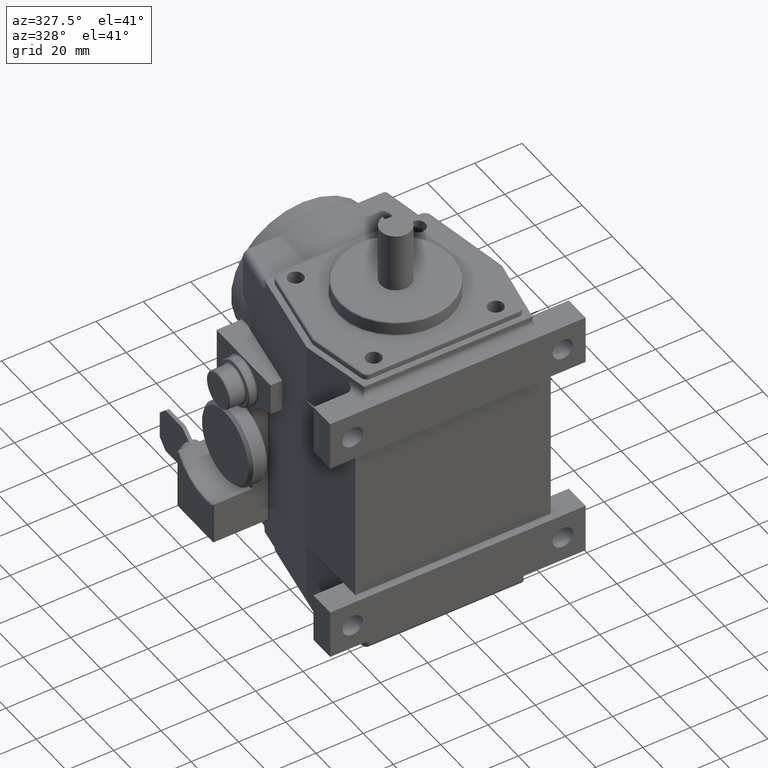
[diagram: clean part render]
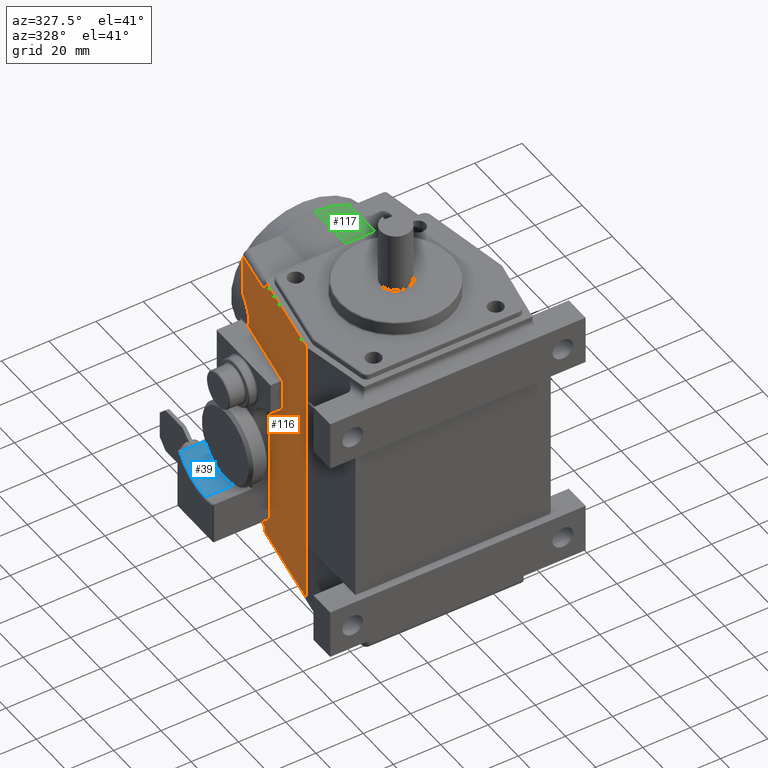
[diagram: same view with three faces highlighted in distinct colors, each labeled with its STEP entity id]
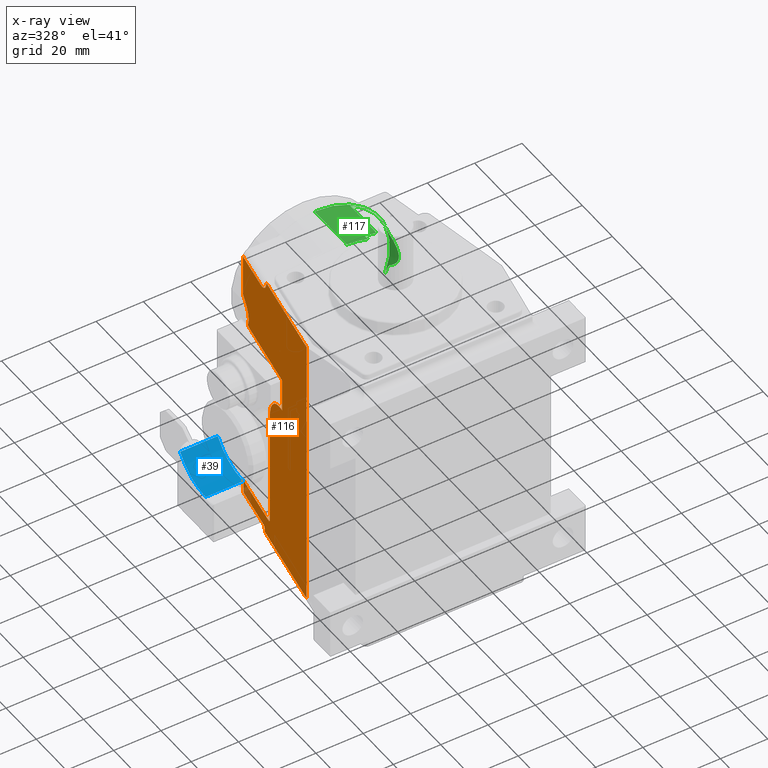
[diagram: x-ray of the same camera — body ghosted, the three highlighted faces saturated]
A machine part, auxiliary view with three faces highlighted in distinct colors.
The next image is the same camera in x-ray (body ghosted, the three faces saturated) — at least one of them is partly hidden behind the body in this view.
Their STEP definitions:

[orange] entity #116 — the highlighted planar face has unit normal (-0.9844, 0.1757, 0).
#116 = ADVANCED_FACE ( 'NONE', ( #3120 ), #3593, .T. ) ;
#349 = EDGE_LOOP ( 'NONE', ( #1323, #1324, #1325, #1326, #1327, #1328, #1329, #1330, #1331, #1332, #1333, #1334, #1335, #1336, #1337, #1338, #1339, #1340, #1341, #1342 ) ) ;
#756 = EDGE_CURVE ( 'NONE', #10120, #10119, #4960, .T. ) ;
#779 = EDGE_CURVE ( 'NONE', #10119, #10135, #5007, .T. ) ;
#786 = EDGE_CURVE ( 'NONE', #10137, #10120, #5020, .T. ) ;
#812 = EDGE_CURVE ( 'NONE', #7578, #7579, #5478, .T. ) ;
#816 = EDGE_CURVE ( 'NONE', #9933, #7575, #5059, .T. ) ;
#819 = EDGE_CURVE ( 'NONE', #9934, #7576, #5479, .T. ) ;
#820 = EDGE_CURVE ( 'NONE', #7573, #7575, #5066, .T. ) ;
#821 = EDGE_CURVE ( 'NONE', #7573, #7574, #5480, .T. ) ;
#822 = EDGE_CURVE ( 'NONE', #7577, #7578, #5074, .T. ) ;
#823 = EDGE_CURVE ( 'NONE', #7576, #7577, #5075, .T. ) ;
#824 = EDGE_CURVE ( 'NONE', #7579, #7580, #5077, .T. ) ;
#825 = EDGE_CURVE ( 'NONE', #7581, #7580, #5481, .T. ) ;
#826 = EDGE_CURVE ( 'NONE', #7581, #7582, #5079, .T. ) ;
#827 = EDGE_CURVE ( 'NONE', #7582, #7583, #5080, .T. ) ;
#828 = EDGE_CURVE ( 'NONE', #7583, #7584, #5082, .T. ) ;
#829 = EDGE_CURVE ( 'NONE', #7585, #7584, #5482, .T. ) ;
#830 = EDGE_CURVE ( 'NONE', #7585, #7586, #5085, .T. ) ;
#1323 = ORIENTED_EDGE ( 'NONE', *, *, #821, .F. ) ;
#1324 = ORIENTED_EDGE ( 'NONE', *, *, #820, .T. ) ;
#1325 = ORIENTED_EDGE ( 'NONE', *, *, #816, .F. ) ;
#1326 = ORIENTED_EDGE ( 'NONE', *, *, #10259, .T. ) ;
#1327 = ORIENTED_EDGE ( 'NONE', *, *, #819, .T. ) ;
#1328 = ORIENTED_EDGE ( 'NONE', *, *, #823, .T. ) ;
#1329 = ORIENTED_EDGE ( 'NONE', *, *, #822, .T. ) ;
#1330 = ORIENTED_EDGE ( 'NONE', *, *, #812, .T. ) ;
#1331 = ORIENTED_EDGE ( 'NONE', *, *, #824, .T. ) ;
#1332 = ORIENTED_EDGE ( 'NONE', *, *, #825, .F. ) ;
#1333 = ORIENTED_EDGE ( 'NONE', *, *, #826, .T. ) ;
#1334 = ORIENTED_EDGE ( 'NONE', *, *, #827, .T. ) ;
#1335 = ORIENTED_EDGE ( 'NONE', *, *, #828, .T. ) ;
#1336 = ORIENTED_EDGE ( 'NONE', *, *, #829, .F. ) ;
#1337 = ORIENTED_EDGE ( 'NONE', *, *, #830, .T. ) ;
#1338 = ORIENTED_EDGE ( 'NONE', *, *, #1511, .F. ) ;
#1339 = ORIENTED_EDGE ( 'NONE', *, *, #786, .T. ) ;
#1340 = ORIENTED_EDGE ( 'NONE', *, *, #756, .T. ) ;
#1341 = ORIENTED_EDGE ( 'NONE', *, *, #779, .T. ) ;
#1342 = ORIENTED_EDGE ( 'NONE', *, *, #1513, .F. ) ;
#1511 = EDGE_CURVE ( 'NONE', #10137, #7586, #5084, .T. ) ;
#1513 = EDGE_CURVE ( 'NONE', #7574, #10135, #5089, .T. ) ;
#2301 = AXIS2_PLACEMENT_3D ( 'NONE', #3588, #3598, #3599 ) ;
#3120 = FACE_OUTER_BOUND ( 'NONE', #349, .T. ) ;
#3588 = CARTESIAN_POINT ( 'NONE',  ( -1.350000000000000100, 2.941057727073513700, -5.170546149987207400 ) ) ;
#3593 = PLANE ( 'NONE',  #2301 ) ;
#3598 = DIRECTION ( 'NONE',  ( -0.9844484489815509300, 0.1756737069052133300, 0.0000000000000000000 ) ) ;
#3599 = DIRECTION ( 'NONE',  ( -0.1756737069052133100, -0.9844484489815508200, 0.0000000000000000000 ) ) ;
#4477 = CARTESIAN_POINT ( 'NONE',  ( -1.625000000000000200, 1.399999999999999900, -2.636674182409035200 ) ) ;
#4478 = DIRECTION ( 'NONE',  ( 6.427877632151208200E-017, 0.0000000000000000000, 1.000000000000000000 ) ) ;
#4524 = CARTESIAN_POINT ( 'NONE',  ( -1.625000000000000200, 1.400000000000000100, -7.944846591481599800 ) ) ;
#4525 = DIRECTION ( 'NONE',  ( -0.0000000000000000000, -0.0000000000000000000, 1.000000000000000000 ) ) ;
#4538 = CARTESIAN_POINT ( 'NONE',  ( -1.625000000000000200, 1.400000000000000100, -7.944846591481599800 ) ) ;
#4539 = DIRECTION ( 'NONE',  ( -0.0000000000000000000, -0.0000000000000000000, 1.000000000000000000 ) ) ;
#4598 = CARTESIAN_POINT ( 'NONE',  ( -1.466626633634628800, 2.287500000000000100, 0.4374785680651232000 ) ) ;
#4602 = CARTESIAN_POINT ( 'NONE',  ( -1.212337003132483200, 3.712500000000000400, -5.170546149987207400 ) ) ;
#4603 = CARTESIAN_POINT ( 'NONE',  ( -1.419952252510547900, 2.549056057045958400, 0.4349257508108287900 ) ) ;
#4604 = CARTESIAN_POINT ( 'NONE',  ( -1.387108364388650600, 2.733108157327369900, 0.2490685146445616200 ) ) ;
#4605 = CARTESIAN_POINT ( 'NONE',  ( -1.387108364388650600, 2.733108157327370300, -0.01250000000000034400 ) ) ;
#4613 = CARTESIAN_POINT ( 'NONE',  ( -1.244564957829135600, 3.531899495952542700, 1.019828782149000200 ) ) ;
#4614 = DIRECTION ( 'NONE',  ( 0.0000000000000000000, 0.0000000000000000000, 1.000000000000000000 ) ) ;
#4615 = CARTESIAN_POINT ( 'NONE',  ( -1.328065329380275300, 3.063976249434746900, 2.137500000000000200 ) ) ;
#4619 = CARTESIAN_POINT ( 'NONE',  ( -1.378185921213136700, 2.783108157327370200, -2.012500000000000200 ) ) ;
#4620 = CARTESIAN_POINT ( 'NONE',  ( -1.243097654882026300, 3.540122036114724800, 1.004145444561801900 ) ) ;
#4621 = CARTESIAN_POINT ( 'NONE',  ( -1.253704429923036700, 3.480683299255526600, 0.9924999999999990500 ) ) ;
#4622 = CARTESIAN_POINT ( 'NONE',  ( -1.269456256985718200, 3.392412481762905300, 0.9924999999999990500 ) ) ;
#4623 = CARTESIAN_POINT ( 'NONE',  ( -1.212337003132482900, 3.712500000000000800, 2.137500000000000200 ) ) ;
#4624 = DIRECTION ( 'NONE',  ( 0.1756737069052133100, 0.9844484489815508200, -0.0000000000000000000 ) ) ;
#4625 = CARTESIAN_POINT ( 'NONE',  ( -1.466626633634628800, 2.287500000000000100, 0.2125000000000000500 ) ) ;
#4626 = CARTESIAN_POINT ( 'NONE',  ( -1.353517405370799900, 2.921346728070163500, -2.287499999999999200 ) ) ;
#4627 = CARTESIAN_POINT ( 'NONE',  ( -1.349156155390526000, 2.945786502549439000, 2.137499999999999700 ) ) ;
#4628 = CARTESIAN_POINT ( 'NONE',  ( -1.364069621483200000, 2.862213731060115700, 2.220342712474619300 ) ) ;
#4629 = CARTESIAN_POINT ( 'NONE',  ( -1.364069621483199800, 2.862213731060115700, 2.337499999999999900 ) ) ;
#4630 = DIRECTION ( 'NONE',  ( 0.0000000000000000000, 0.0000000000000000000, -1.000000000000000000 ) ) ;
#4631 = CARTESIAN_POINT ( 'NONE',  ( -1.472594377688335700, 2.254057679683047200, 0.9924999999999990500 ) ) ;
#4632 = DIRECTION ( 'NONE',  ( -0.1756737069052133100, -0.9844484489815508200, 0.0000000000000000000 ) ) ;
#4633 = CARTESIAN_POINT ( 'NONE',  ( -1.387108364388650600, 2.733108157327370300, -5.170546149987207400 ) ) ;
#4634 = DIRECTION ( 'NONE',  ( -0.0000000000000000000, -0.0000000000000000000, -1.000000000000000000 ) ) ;
#4635 = CARTESIAN_POINT ( 'NONE',  ( -1.350000000000000100, 2.941057727073513700, -2.012500000000000600 ) ) ;
#4636 = CARTESIAN_POINT ( 'NONE',  ( -1.350000000000000100, 2.941057727073513700, 2.337499999999999900 ) ) ;
#4637 = CARTESIAN_POINT ( 'NONE',  ( -1.383412567415849500, 2.753818835446025100, -2.012500000000000600 ) ) ;
#4638 = CARTESIAN_POINT ( 'NONE',  ( -1.387108364388650600, 2.733108157327369900, -1.991789321881345800 ) ) ;
#4639 = CARTESIAN_POINT ( 'NONE',  ( -1.387108364388650600, 2.733108157327370300, -1.962500000000000400 ) ) ;
#4640 = DIRECTION ( 'NONE',  ( 0.1756737069052133100, 0.9844484489815508200, -0.0000000000000000000 ) ) ;
#4641 = CARTESIAN_POINT ( 'NONE',  ( -1.216014505386593200, 3.691891842672630800, -5.170546149987207400 ) ) ;
#4642 = DIRECTION ( 'NONE',  ( -0.0000000000000000000, -0.0000000000000000000, -1.000000000000000000 ) ) ;
#4643 = CARTESIAN_POINT ( 'NONE',  ( -1.350000000000000100, 2.941057727073513700, -2.237499999999999400 ) ) ;
#4644 = DIRECTION ( 'NONE',  ( -0.1756737069052133100, -0.9844484489815508200, 2.258418182346217400E-017 ) ) ;
#4645 = CARTESIAN_POINT ( 'NONE',  ( -1.353517405370799900, 2.921346728070163500, -2.337500000000000800 ) ) ;
#4646 = CARTESIAN_POINT ( 'NONE',  ( -1.625000000000000200, 1.400000000000000100, -2.337500000000000400 ) ) ;
#4647 = CARTESIAN_POINT ( 'NONE',  ( -1.353517405370800300, 2.921346728070163900, -2.258210678118653700 ) ) ;
#4648 = CARTESIAN_POINT ( 'NONE',  ( -1.349789038847631700, 2.942239920942495400, -2.237499999999998900 ) ) ;
#4649 = CARTESIAN_POINT ( 'NONE',  ( -1.344516332345068800, 2.971787357663822100, -2.237499999999999400 ) ) ;
#4651 = DIRECTION ( 'NONE',  ( -0.0000000000000000000, -0.0000000000000000000, -1.000000000000000000 ) ) ;
#4653 = DIRECTION ( 'NONE',  ( 0.1756737069052133600, 0.9844484489815508200, 0.0000000000000000000 ) ) ;
#4657 = DIRECTION ( 'NONE',  ( -0.1756737069052133600, -0.9844484489815508200, 0.0000000000000000000 ) ) ;
#4960 = LINE ( 'NONE', #4477, #4961 ) ;
#4961 = VECTOR ( 'NONE', #4478, 39.37007874015748100 ) ;
#5007 = LINE ( 'NONE', #4524, #5008 ) ;
#5008 = VECTOR ( 'NONE', #4525, 39.37007874015748100 ) ;
#5020 = LINE ( 'NONE', #4538, #5021 ) ;
#5021 = VECTOR ( 'NONE', #4539, 39.37007874015748100 ) ;
#5059 = LINE ( 'NONE', #4602, #5065 ) ;
#5065 = VECTOR ( 'NONE', #4614, 39.37007874015748100 ) ;
#5066 = LINE ( 'NONE', #4623, #5072 ) ;
#5070 = VECTOR ( 'NONE', #4630, 39.37007874015748100 ) ;
#5071 = VECTOR ( 'NONE', #4640, 39.37007874015748900 ) ;
#5072 = VECTOR ( 'NONE', #4624, 39.37007874015748900 ) ;
#5073 = VECTOR ( 'NONE', #4651, 39.37007874015748100 ) ;
#5074 = LINE ( 'NONE', #4625, #5070 ) ;
#5075 = LINE ( 'NONE', #4631, #5076 ) ;
#5076 = VECTOR ( 'NONE', #4632, 39.37007874015748900 ) ;
#5077 = LINE ( 'NONE', #4633, #5078 ) ;
#5078 = VECTOR ( 'NONE', #4634, 39.37007874015748100 ) ;
#5079 = LINE ( 'NONE', #4635, #5071 ) ;
#5080 = LINE ( 'NONE', #4641, #5081 ) ;
#5081 = VECTOR ( 'NONE', #4642, 39.37007874015748100 ) ;
#5082 = LINE ( 'NONE', #4643, #5083 ) ;
#5083 = VECTOR ( 'NONE', #4644, 39.37007874015748900 ) ;
#5084 = LINE ( 'NONE', #4646, #5087 ) ;
#5085 = LINE ( 'NONE', #4645, #5073 ) ;
#5086 = VECTOR ( 'NONE', #4657, 39.37007874015748900 ) ;
#5087 = VECTOR ( 'NONE', #4653, 39.37007874015748900 ) ;
#5089 = LINE ( 'NONE', #4636, #5086 ) ;
#5478 =( BOUNDED_CURVE ( )  B_SPLINE_CURVE ( 3, ( #4598, #4603, #4604, #4605 ),
 .UNSPECIFIED., .F., .T. ) 
 B_SPLINE_CURVE_WITH_KNOTS ( ( 4, 4 ),
 ( 1.580556132120872500, 3.141592653589793100 ),
 .UNSPECIFIED. ) 
 CURVE ( )  GEOMETRIC_REPRESENTATION_ITEM ( )  RATIONAL_B_SPLINE_CURVE ( ( 1.000000000000000000, 0.8070326402977651100, 0.8070326402977651100, 1.000000000000000000 ) ) 
 REPRESENTATION_ITEM ( '' )  );
#5479 =( BOUNDED_CURVE ( )  B_SPLINE_CURVE ( 3, ( #4613, #4620, #4621, #4622 ),
 .UNSPECIFIED., .F., .T. ) 
 B_SPLINE_CURVE_WITH_KNOTS ( ( 4, 4 ),
 ( 6.189898777661539100, 7.853981633974479200 ),
 .UNSPECIFIED. ) 
 CURVE ( )  GEOMETRIC_REPRESENTATION_ITEM ( )  RATIONAL_B_SPLINE_CURVE ( ( 1.000000000000000000, 0.7822452806607836900, 0.7822452806607836900, 1.000000000000000000 ) ) 
 REPRESENTATION_ITEM ( '' )  );
#5480 =( BOUNDED_CURVE ( )  B_SPLINE_CURVE ( 3, ( #4615, #4627, #4628, #4629 ),
 .UNSPECIFIED., .F., .T. ) 
 B_SPLINE_CURVE_WITH_KNOTS ( ( 4, 4 ),
 ( 4.712388980384689700, 6.283185307179586200 ),
 .UNSPECIFIED. ) 
 CURVE ( )  GEOMETRIC_REPRESENTATION_ITEM ( )  RATIONAL_B_SPLINE_CURVE ( ( 1.000000000000000000, 0.8047378541243649400, 0.8047378541243649400, 1.000000000000000000 ) ) 
 REPRESENTATION_ITEM ( '' )  );
#5481 =( BOUNDED_CURVE ( )  B_SPLINE_CURVE ( 3, ( #4619, #4637, #4638, #4639 ),
 .UNSPECIFIED., .F., .T. ) 
 B_SPLINE_CURVE_WITH_KNOTS ( ( 4, 4 ),
 ( 4.712388980384689700, 6.283185307179586200 ),
 .UNSPECIFIED. ) 
 CURVE ( )  GEOMETRIC_REPRESENTATION_ITEM ( )  RATIONAL_B_SPLINE_CURVE ( ( 1.000000000000000000, 0.8047378541243649400, 0.8047378541243649400, 1.000000000000000000 ) ) 
 REPRESENTATION_ITEM ( '' )  );
#5482 =( BOUNDED_CURVE ( )  B_SPLINE_CURVE ( 3, ( #4626, #4647, #4648, #4649 ),
 .UNSPECIFIED., .F., .T. ) 
 B_SPLINE_CURVE_WITH_KNOTS ( ( 4, 4 ),
 ( 3.141592653589792700, 4.712388980384689700 ),
 .UNSPECIFIED. ) 
 CURVE ( )  GEOMETRIC_REPRESENTATION_ITEM ( )  RATIONAL_B_SPLINE_CURVE ( ( 1.000000000000000000, 0.8047378541243649400, 0.8047378541243649400, 1.000000000000000000 ) ) 
 REPRESENTATION_ITEM ( '' )  );
#5527 =( BOUNDED_CURVE ( )  B_SPLINE_CURVE ( 3, ( #9810, #9814, #9815, #9816 ),
 .UNSPECIFIED., .F., .T. ) 
 B_SPLINE_CURVE_WITH_KNOTS ( ( 4, 4 ),
 ( 2.895491325189463200, 3.234879183107825200 ),
 .UNSPECIFIED. ) 
 CURVE ( )  GEOMETRIC_REPRESENTATION_ITEM ( )  RATIONAL_B_SPLINE_CURVE ( ( 1.000000000000000000, 0.9904243350412562700, 0.9904243350412562700, 1.000000000000000000 ) ) 
 REPRESENTATION_ITEM ( '' )  );
#7573 = VERTEX_POINT ( 'NONE', #9066 ) ;
#7574 = VERTEX_POINT ( 'NONE', #9067 ) ;
#7575 = VERTEX_POINT ( 'NONE', #9068 ) ;
#7576 = VERTEX_POINT ( 'NONE', #9069 ) ;
#7577 = VERTEX_POINT ( 'NONE', #9070 ) ;
#7578 = VERTEX_POINT ( 'NONE', #9071 ) ;
#7579 = VERTEX_POINT ( 'NONE', #9072 ) ;
#7580 = VERTEX_POINT ( 'NONE', #9073 ) ;
#7581 = VERTEX_POINT ( 'NONE', #9074 ) ;
#7582 = VERTEX_POINT ( 'NONE', #9075 ) ;
#7583 = VERTEX_POINT ( 'NONE', #9049 ) ;
#7584 = VERTEX_POINT ( 'NONE', #9076 ) ;
#7585 = VERTEX_POINT ( 'NONE', #9077 ) ;
#7586 = VERTEX_POINT ( 'NONE', #9078 ) ;
#9049 = CARTESIAN_POINT ( 'NONE',  ( -1.216014505386593200, 3.691891842672630800, -2.237499999999999400 ) ) ;
#9066 = CARTESIAN_POINT ( 'NONE',  ( -1.328065329380275300, 3.063976249434746900, 2.137500000000000200 ) ) ;
#9067 = CARTESIAN_POINT ( 'NONE',  ( -1.364069621483199800, 2.862213731060115700, 2.337499999999999900 ) ) ;
#9068 = CARTESIAN_POINT ( 'NONE',  ( -1.212337003132483200, 3.712500000000000400, 2.137499999999997500 ) ) ;
#9069 = CARTESIAN_POINT ( 'NONE',  ( -1.269456256985718200, 3.392412481762905300, 0.9924999999999990500 ) ) ;
#9070 = CARTESIAN_POINT ( 'NONE',  ( -1.466626633634628800, 2.287500000000000100, 0.9924999999999990500 ) ) ;
#9071 = CARTESIAN_POINT ( 'NONE',  ( -1.466626633634628800, 2.287500000000000100, 0.4374785680651232000 ) ) ;
#9072 = CARTESIAN_POINT ( 'NONE',  ( -1.387108364388650600, 2.733108157327370300, -0.01250000000000034400 ) ) ;
#9073 = CARTESIAN_POINT ( 'NONE',  ( -1.387108364388650600, 2.733108157327370300, -1.962500000000000400 ) ) ;
#9074 = CARTESIAN_POINT ( 'NONE',  ( -1.378185921213136700, 2.783108157327370200, -2.012500000000000200 ) ) ;
#9075 = CARTESIAN_POINT ( 'NONE',  ( -1.216014505386593200, 3.691891842672630800, -2.012500000000000200 ) ) ;
#9076 = CARTESIAN_POINT ( 'NONE',  ( -1.344516332345068800, 2.971787357663822100, -2.237499999999999400 ) ) ;
#9077 = CARTESIAN_POINT ( 'NONE',  ( -1.353517405370799900, 2.921346728070163500, -2.287499999999999200 ) ) ;
#9078 = CARTESIAN_POINT ( 'NONE',  ( -1.353517405370800300, 2.921346728070163500, -2.337500000000000400 ) ) ;
#9279 = CARTESIAN_POINT ( 'NONE',  ( -1.212337003132482500, 3.712500000000000400, 1.440798661173526000 ) ) ;
#9280 = CARTESIAN_POINT ( 'NONE',  ( -1.244564957829135600, 3.531899495952542700, 1.019828782149000200 ) ) ;
#9471 = CARTESIAN_POINT ( 'NONE',  ( -1.625000000000000000, 1.399999999999999900, 1.337500000000000100 ) ) ;
#9472 = CARTESIAN_POINT ( 'NONE',  ( -1.625000000000000200, 1.400000000000000100, -1.337499999999999700 ) ) ;
#9487 = CARTESIAN_POINT ( 'NONE',  ( -1.625000000000000200, 1.400000000000000100, 2.337499999999999900 ) ) ;
#9489 = CARTESIAN_POINT ( 'NONE',  ( -1.625000000000000200, 1.400000000000000100, -2.337500000000000400 ) ) ;
#9810 = CARTESIAN_POINT ( 'NONE',  ( -1.212337003132482500, 3.712500000000000400, 1.440798661173526000 ) ) ;
#9814 = CARTESIAN_POINT ( 'NONE',  ( -1.246954733891800600, 3.518507558253105100, 1.302985474850797000 ) ) ;
#9815 = CARTESIAN_POINT ( 'NONE',  ( -1.257801248042832000, 3.457725360273980400, 1.161305501890187900 ) ) ;
#9816 = CARTESIAN_POINT ( 'NONE',  ( -1.244564957829135600, 3.531899495952542700, 1.019828782149000200 ) ) ;
#9933 = VERTEX_POINT ( 'NONE', #9279 ) ;
#9934 = VERTEX_POINT ( 'NONE', #9280 ) ;
#10119 = VERTEX_POINT ( 'NONE', #9471 ) ;
#10120 = VERTEX_POINT ( 'NONE', #9472 ) ;
#10135 = VERTEX_POINT ( 'NONE', #9487 ) ;
#10137 = VERTEX_POINT ( 'NONE', #9489 ) ;
#10259 = EDGE_CURVE ( 'NONE', #9933, #9934, #5527, .T. ) ;

[blue] entity #39 — the highlighted cylindrical surface (partial cylindrical patch) has radius 20.6008 mm, axis along (1, 0, 0).
#39 = ADVANCED_FACE ( 'NONE', ( #2988 ), #2997, .F. ) ;
#225 = ORIENTED_EDGE ( 'NONE', *, *, #672, .T. ) ;
#226 = ORIENTED_EDGE ( 'NONE', *, *, #671, .T. ) ;
#227 = ORIENTED_EDGE ( 'NONE', *, *, #662, .T. ) ;
#228 = ORIENTED_EDGE ( 'NONE', *, *, #673, .T. ) ;
#256 = EDGE_LOOP ( 'NONE', ( #225, #226, #227, #228 ) ) ;
#662 = EDGE_CURVE ( 'NONE', #10012, #10013, #3388, .T. ) ;
#671 = EDGE_CURVE ( 'NONE', #9993, #10012, #3399, .T. ) ;
#672 = EDGE_CURVE ( 'NONE', #10011, #9993, #3401, .T. ) ;
#673 = EDGE_CURVE ( 'NONE', #10013, #10011, #3389, .T. ) ;
#2224 = AXIS2_PLACEMENT_3D ( 'NONE', #7452, #7453, #7457 ) ;
#2988 = FACE_OUTER_BOUND ( 'NONE', #256, .T. ) ;
#2997 = CYLINDRICAL_SURFACE ( 'NONE', #2224, 0.8110564098754168300 ) ;
#3388 = CIRCLE ( 'NONE', #4718, 0.8110564098754168300 ) ;
#3389 = LINE ( 'NONE', #4278, #3395 ) ;
#3395 = VECTOR ( 'NONE', #4279, 39.37007874015748100 ) ;
#3397 = VECTOR ( 'NONE', #4275, 39.37007874015748100 ) ;
#3399 = LINE ( 'NONE', #4268, #3397 ) ;
#3401 = CIRCLE ( 'NONE', #4724, 0.8110564098754168300 ) ;
#4252 = CARTESIAN_POINT ( 'NONE',  ( -1.660000000000000400, 3.000000000000000400, -0.5000000000000001100 ) ) ;
#4253 = DIRECTION ( 'NONE',  ( 1.000000000000000000, -0.0000000000000000000, -0.0000000000000000000 ) ) ;
#4254 = DIRECTION ( 'NONE',  ( 0.0000000000000000000, 0.0000000000000000000, 1.000000000000000000 ) ) ;
#4268 = CARTESIAN_POINT ( 'NONE',  ( -3.765944185374863200, 3.000000000000000400, -1.311056409875416900 ) ) ;
#4274 = CARTESIAN_POINT ( 'NONE',  ( -2.287500000000000100, 3.000000000000000400, -0.5000000000000001100 ) ) ;
#4275 = DIRECTION ( 'NONE',  ( 1.000000000000000000, 0.0000000000000000000, 0.0000000000000000000 ) ) ;
#4276 = DIRECTION ( 'NONE',  ( -1.000000000000000000, -0.0000000000000000000, -0.0000000000000000000 ) ) ;
#4277 = DIRECTION ( 'NONE',  ( 0.0000000000000000000, 0.0000000000000000000, -1.000000000000000000 ) ) ;
#4278 = CARTESIAN_POINT ( 'NONE',  ( -3.765944185374863200, 3.666942176631884400, -0.9615199161786246500 ) ) ;
#4279 = DIRECTION ( 'NONE',  ( -1.000000000000000000, -0.0000000000000000000, -0.0000000000000000000 ) ) ;
#4718 = AXIS2_PLACEMENT_3D ( 'NONE', #4252, #4253, #4254 ) ;
#4724 = AXIS2_PLACEMENT_3D ( 'NONE', #4274, #4276, #4277 ) ;
#7452 = CARTESIAN_POINT ( 'NONE',  ( -3.765944185374863200, 3.000000000000000400, -0.5000000000000001100 ) ) ;
#7453 = DIRECTION ( 'NONE',  ( 1.000000000000000000, 0.0000000000000000000, 0.0000000000000000000 ) ) ;
#7457 = DIRECTION ( 'NONE',  ( 0.0000000000000000000, 0.0000000000000000000, -1.000000000000000000 ) ) ;
#9339 = CARTESIAN_POINT ( 'NONE',  ( -2.287500000000000100, 3.000000000000000400, -1.311056409875416900 ) ) ;
#9357 = CARTESIAN_POINT ( 'NONE',  ( -2.287500000000000100, 3.666942176631884400, -0.9615199161786247600 ) ) ;
#9358 = CARTESIAN_POINT ( 'NONE',  ( -1.660000000000000400, 3.000000000000000400, -1.311056409875416900 ) ) ;
#9359 = CARTESIAN_POINT ( 'NONE',  ( -1.660000000000000400, 3.666942176631884400, -0.9615199161786249800 ) ) ;
#9993 = VERTEX_POINT ( 'NONE', #9339 ) ;
#10011 = VERTEX_POINT ( 'NONE', #9357 ) ;
#10012 = VERTEX_POINT ( 'NONE', #9358 ) ;
#10013 = VERTEX_POINT ( 'NONE', #9359 ) ;

[green] entity #117 — the highlighted cylindrical surface (partial cylindrical patch) has radius 31.75 mm, axis along (0, 1, 0).
#117 = ADVANCED_FACE ( 'NONE', ( #3122 ), #3127, .T. ) ;
#351 = EDGE_LOOP ( 'NONE', ( #1343, #1344, #1345, #1346, #1347, #1348, #1349, #1350, #1351 ) ) ;
#644 = EDGE_CURVE ( 'NONE', #9998, #10001, #3365, .T. ) ;
#1343 = ORIENTED_EDGE ( 'NONE', *, *, #10191, .F. ) ;
#1344 = ORIENTED_EDGE ( 'NONE', *, *, #1512, .F. ) ;
#1345 = ORIENTED_EDGE ( 'NONE', *, *, #1514, .F. ) ;
#1346 = ORIENTED_EDGE ( 'NONE', *, *, #1516, .T. ) ;
#1347 = ORIENTED_EDGE ( 'NONE', *, *, #1515, .T. ) ;
#1348 = ORIENTED_EDGE ( 'NONE', *, *, #1517, .F. ) ;
#1349 = ORIENTED_EDGE ( 'NONE', *, *, #1518, .T. ) ;
#1350 = ORIENTED_EDGE ( 'NONE', *, *, #1519, .T. ) ;
#1351 = ORIENTED_EDGE ( 'NONE', *, *, #644, .T. ) ;
#1512 = EDGE_CURVE ( 'NONE', #7587, #9937, #5483, .T. ) ;
#1514 = EDGE_CURVE ( 'NONE', #7588, #7587, #5090, .T. ) ;
#1515 = EDGE_CURVE ( 'NONE', #7589, #7590, #5092, .T. ) ;
#1516 = EDGE_CURVE ( 'NONE', #7588, #7589, #3473, .T. ) ;
#1517 = EDGE_CURVE ( 'NONE', #7591, #7590, #5095, .T. ) ;
#1518 = EDGE_CURVE ( 'NONE', #7591, #7592, #5484, .T. ) ;
#1519 = EDGE_CURVE ( 'NONE', #7592, #9998, #3474, .T. ) ;
#2302 = AXIS2_PLACEMENT_3D ( 'NONE', #3596, #3597, #3592 ) ;
#3122 = FACE_OUTER_BOUND ( 'NONE', #351, .T. ) ;
#3127 = CYLINDRICAL_SURFACE ( 'NONE', #2302, 1.250000000000000000 ) ;
#3365 = CIRCLE ( 'NONE', #4704, 1.250000000000000000 ) ;
#3473 = B_SPLINE_CURVE_WITH_KNOTS ( 'NONE', 3,
 ( #4652, #5530, #5531, #5532, #5533, #5534, #5535, #5536, #5537, #5538, #5539, #5540 ),
 .UNSPECIFIED., .F., .F.,
 ( 4, 2, 2, 2, 2, 4 ),
 ( 0.0000000000000000000, 0.001584679290195115600, 0.003169358580390231300, 0.004754037870585346900, 0.005546377515682896500, 0.006338717160780446000 ),
 .UNSPECIFIED. ) ;
#3474 = B_SPLINE_CURVE_WITH_KNOTS ( 'NONE', 3,
 ( #5544, #5550, #5551, #5552, #5553, #5554, #5555, #5556, #5557, #5558, #5559, #5560, #5561, #5562 ),
 .UNSPECIFIED., .F., .F.,
 ( 4, 2, 2, 2, 2, 2, 4 ),
 ( 0.0000000000000000000, 0.0002755821740716553800, 0.0005511643481433107700, 0.001102328696286611100, 0.002204657392573211800, 0.003306986088859812800, 0.004409314785146413300 ),
 .UNSPECIFIED. ) ;
#3592 = DIRECTION ( 'NONE',  ( 0.0000000000000000000, 0.0000000000000000000, 1.000000000000000000 ) ) ;
#3596 = CARTESIAN_POINT ( 'NONE',  ( 0.0000000000000000000, 2.632499999999999400, 1.136267889599041700 ) ) ;
#3597 = DIRECTION ( 'NONE',  ( 0.0000000000000000000, 1.000000000000000000, 0.0000000000000000000 ) ) ;
#4187 = CARTESIAN_POINT ( 'NONE',  ( 0.0000000000000000000, 3.737500000000000300, 1.136267889599041700 ) ) ;
#4194 = DIRECTION ( 'NONE',  ( -0.0000000000000000000, -1.000000000000000000, -0.0000000000000000000 ) ) ;
#4195 = DIRECTION ( 'NONE',  ( -8.881784197001252300E-016, 0.0000000000000000000, 1.000000000000000000 ) ) ;
#4650 = CARTESIAN_POINT ( 'NONE',  ( 0.3457476202978987400, 2.884809064373088400, 2.337499999999999900 ) ) ;
#4652 = CARTESIAN_POINT ( 'NONE',  ( 0.3457476202978983500, 2.984904332889420300, 2.337499999999999900 ) ) ;
#4654 = CARTESIAN_POINT ( 'NONE',  ( 0.2331628046848773500, 2.889724623579934100, 2.369905004613876500 ) ) ;
#4655 = CARTESIAN_POINT ( 'NONE',  ( 0.1171555591111386900, 2.894789609305902000, 2.386267889599041700 ) ) ;
#4656 = CARTESIAN_POINT ( 'NONE',  ( 0.0000000000000000000, 2.899904731483667700, 2.386267889599041700 ) ) ;
#4658 = CARTESIAN_POINT ( 'NONE',  ( 0.3457476202978995200, 2.632499999999999400, 2.337499999999999900 ) ) ;
#4659 = DIRECTION ( 'NONE',  ( -0.0000000000000000000, -1.000000000000000000, -0.0000000000000000000 ) ) ;
#4660 = CARTESIAN_POINT ( 'NONE',  ( 0.5704345629924878500, 2.632499999999999400, 2.248519843674003000 ) ) ;
#4661 = DIRECTION ( 'NONE',  ( 0.0000000000000000000, 1.000000000000000000, 0.0000000000000000000 ) ) ;
#4662 = CARTESIAN_POINT ( 'NONE',  ( 0.0000000000000000000, 3.712500000000000400, 1.136267889599041700 ) ) ;
#4704 = AXIS2_PLACEMENT_3D ( 'NONE', #4187, #4194, #4195 ) ;
#4747 = AXIS2_PLACEMENT_3D ( 'NONE', #4662, #5542, #5543 ) ;
#5090 = LINE ( 'NONE', #4658, #5091 ) ;
#5091 = VECTOR ( 'NONE', #4659, 39.37007874015748100 ) ;
#5092 = LINE ( 'NONE', #4660, #5093 ) ;
#5093 = VECTOR ( 'NONE', #4661, 39.37007874015748100 ) ;
#5095 = CIRCLE ( 'NONE', #4747, 1.250000000000000000 ) ;
#5483 =( BOUNDED_CURVE ( )  B_SPLINE_CURVE ( 3, ( #4650, #4654, #4655, #4656 ),
 .UNSPECIFIED., .F., .T. ) 
 B_SPLINE_CURVE_WITH_KNOTS ( ( 4, 4 ),
 ( 4.432136698922487700, 4.712388980384689700 ),
 .UNSPECIFIED. ) 
 CURVE ( )  GEOMETRIC_REPRESENTATION_ITEM ( )  RATIONAL_B_SPLINE_CURVE ( ( 1.000000000000000000, 0.9934655908428530200, 0.9934655908428530200, 1.000000000000000000 ) ) 
 REPRESENTATION_ITEM ( '' )  );
#5484 =( BOUNDED_CURVE ( )  B_SPLINE_CURVE ( 3, ( #5541, #5546, #5547, #5548 ),
 .UNSPECIFIED., .F., .F. ) 
 B_SPLINE_CURVE_WITH_KNOTS ( ( 4, 4 ),
 ( 2.899215369940944400, 3.374325303167157400 ),
 .UNSPECIFIED. ) 
 CURVE ( )  GEOMETRIC_REPRESENTATION_ITEM ( )  RATIONAL_B_SPLINE_CURVE ( ( 1.000000000000000000, 0.9812775078076829700, 0.9812775078076829700, 1.000000000000000000 ) ) 
 REPRESENTATION_ITEM ( '' )  );
#5530 = CARTESIAN_POINT ( 'NONE',  ( 0.3658396249674018000, 2.984027097020627700, 2.331716968776187400 ) ) ;
#5531 = CARTESIAN_POINT ( 'NONE',  ( 0.3857309488064695200, 2.983650863415258800, 2.325445919365422700 ) ) ;
#5532 = CARTESIAN_POINT ( 'NONE',  ( 0.4250873210922537200, 2.984518004808559300, 2.311952167282809600 ) ) ;
#5533 = CARTESIAN_POINT ( 'NONE',  ( 0.4445531097898001700, 2.985744666282255100, 2.304728990573440100 ) ) ;
#5534 = CARTESIAN_POINT ( 'NONE',  ( 0.4830125149321166700, 2.990869291503937400, 2.289362734931826200 ) ) ;
#5535 = CARTESIAN_POINT ( 'NONE',  ( 0.5021330454134479400, 2.994765064973903300, 2.281152362740777000 ) ) ;
#5536 = CARTESIAN_POINT ( 'NONE',  ( 0.5293444764558900000, 3.004142968498678900, 2.268696226528114800 ) ) ;
#5537 = CARTESIAN_POINT ( 'NONE',  ( 0.5382231340736976000, 3.007877849964586800, 2.264499011529927500 ) ) ;
#5538 = CARTESIAN_POINT ( 'NONE',  ( 0.5552482952394137700, 3.017182586170932300, 2.256218306885120900 ) ) ;
#5539 = CARTESIAN_POINT ( 'NONE',  ( 0.5632560496481102700, 3.022639385479251900, 2.252201448464655500 ) ) ;
#5540 = CARTESIAN_POINT ( 'NONE',  ( 0.5704345629924877400, 3.029511317025493700, 2.248519843674003000 ) ) ;
#5541 = CARTESIAN_POINT ( 'NONE',  ( 1.213462680088890800, 3.712500000000000400, 1.436281762664081600 ) ) ;
#5542 = DIRECTION ( 'NONE',  ( -0.0000000000000000000, -1.000000000000000000, -0.0000000000000000000 ) ) ;
#5543 = DIRECTION ( 'NONE',  ( -5.329070518200750600E-015, 0.0000000000000000000, 1.000000000000000000 ) ) ;
#5544 = CARTESIAN_POINT ( 'NONE',  ( 1.216299722167773800, 3.696283685345276300, 0.8479711919859810300 ) ) ;
#5546 = CARTESIAN_POINT ( 'NONE',  ( 1.261428285125507400, 3.438332285087482000, 1.242275828721153900 ) ) ;
#5547 = CARTESIAN_POINT ( 'NONE',  ( 1.262392009133686900, 3.432823712665070900, 1.042430706419828600 ) ) ;
#5548 = CARTESIAN_POINT ( 'NONE',  ( 1.216299722167773800, 3.696283685345276300, 0.8479711919859810300 ) ) ;
#5550 = CARTESIAN_POINT ( 'NONE',  ( 1.215792887653981900, 3.699180712504194900, 0.8458328994442538800 ) ) ;
#5551 = CARTESIAN_POINT ( 'NONE',  ( 1.215139577577800200, 3.701537978753766600, 0.8431051612549178600 ) ) ;
#5552 = CARTESIAN_POINT ( 'NONE',  ( 1.213752425345586000, 3.705693499921636700, 0.8374140319129910200 ) ) ;
#5553 = CARTESIAN_POINT ( 'NONE',  ( 1.213006556442607800, 3.707498359334744800, 0.8343981349878751800 ) ) ;
#5554 = CARTESIAN_POINT ( 'NONE',  ( 1.210662663222698400, 3.712473426529195700, 0.8250815551215136000 ) ) ;
#5555 = CARTESIAN_POINT ( 'NONE',  ( 1.208985159058454600, 3.715156645698139700, 0.8186188755689675100 ) ) ;
#5556 = CARTESIAN_POINT ( 'NONE',  ( 1.203707335787945500, 3.722318125900749000, 0.7989658090810299900 ) ) ;
#5557 = CARTESIAN_POINT ( 'NONE',  ( 1.199866374505002700, 3.725867939032552200, 0.7855269601728923600 ) ) ;
#5558 = CARTESIAN_POINT ( 'NONE',  ( 1.191655663309588700, 3.731609708219297600, 0.7585705288130787400 ) ) ;
#5559 = CARTESIAN_POINT ( 'NONE',  ( 1.187277058324807600, 3.733754077700178100, 0.7450178046323484600 ) ) ;
#5560 = CARTESIAN_POINT ( 'NONE',  ( 1.178040248520829900, 3.736697180307007900, 0.7180279882555262700 ) ) ;
#5561 = CARTESIAN_POINT ( 'NONE',  ( 1.173171820432614500, 3.737500000000000300, 0.7045558079587213000 ) ) ;
#5562 = CARTESIAN_POINT ( 'NONE',  ( 1.168042445256915800, 3.737500000000000300, 0.6910973087221772300 ) ) ;
#7032 = LINE ( 'NONE', #9591, #7043 ) ;
#7043 = VECTOR ( 'NONE', #9592, 39.37007874015748100 ) ;
#7587 = VERTEX_POINT ( 'NONE', #9079 ) ;
#7588 = VERTEX_POINT ( 'NONE', #9080 ) ;
#7589 = VERTEX_POINT ( 'NONE', #9081 ) ;
#7590 = VERTEX_POINT ( 'NONE', #9082 ) ;
#7591 = VERTEX_POINT ( 'NONE', #9083 ) ;
#7592 = VERTEX_POINT ( 'NONE', #9084 ) ;
#9079 = CARTESIAN_POINT ( 'NONE',  ( 0.3457476202978987400, 2.884809064373088400, 2.337499999999999900 ) ) ;
#9080 = CARTESIAN_POINT ( 'NONE',  ( 0.3457476202978983500, 2.984904332889420300, 2.337499999999999900 ) ) ;
#9081 = CARTESIAN_POINT ( 'NONE',  ( 0.5704345629924877400, 3.029511317025493700, 2.248519843674003000 ) ) ;
#9082 = CARTESIAN_POINT ( 'NONE',  ( 0.5704345629924877400, 3.712500000000000400, 2.248519843674003000 ) ) ;
#9083 = CARTESIAN_POINT ( 'NONE',  ( 1.213462680088890800, 3.712500000000000400, 1.436281762664081600 ) ) ;
#9084 = CARTESIAN_POINT ( 'NONE',  ( 1.216299722167773800, 3.696283685345276300, 0.8479711919859810300 ) ) ;
#9283 = CARTESIAN_POINT ( 'NONE',  ( 0.0000000000000000000, 2.899904731483667700, 2.386267889599041700 ) ) ;
#9344 = CARTESIAN_POINT ( 'NONE',  ( 1.168042445256915800, 3.737500000000000300, 0.6910973087221772300 ) ) ;
#9347 = CARTESIAN_POINT ( 'NONE',  ( 0.0000000000000000000, 3.737500000000000300, 2.386267889599041700 ) ) ;
#9591 = CARTESIAN_POINT ( 'NONE',  ( 0.0000000000000000000, 2.632499999999999400, 2.386267889599041700 ) ) ;
#9592 = DIRECTION ( 'NONE',  ( 0.0000000000000000000, 1.000000000000000000, 0.0000000000000000000 ) ) ;
#9937 = VERTEX_POINT ( 'NONE', #9283 ) ;
#9998 = VERTEX_POINT ( 'NONE', #9344 ) ;
#10001 = VERTEX_POINT ( 'NONE', #9347 ) ;
#10191 = EDGE_CURVE ( 'NONE', #9937, #10001, #7032, .T. ) ;